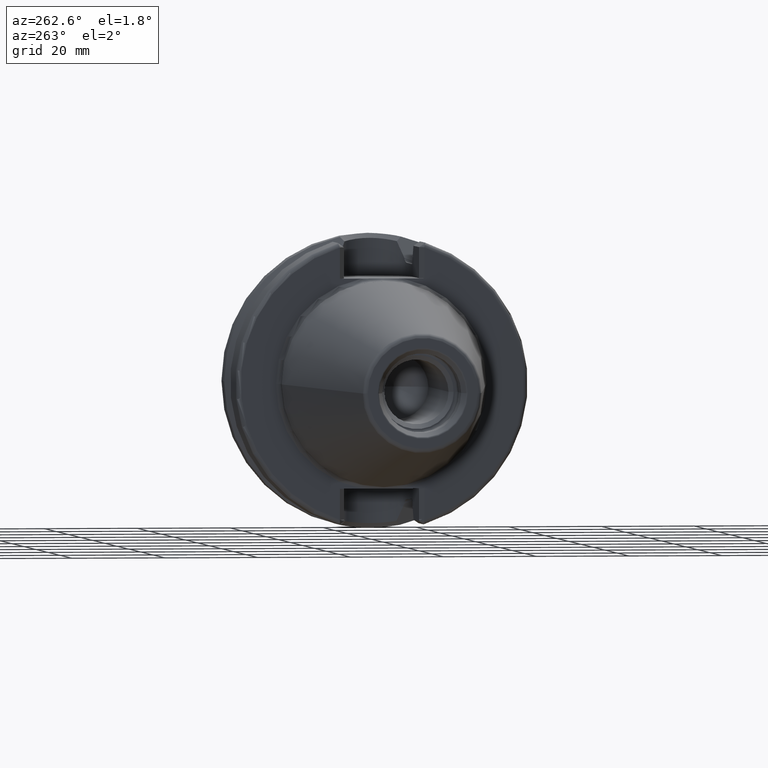
[diagram: clean part render]
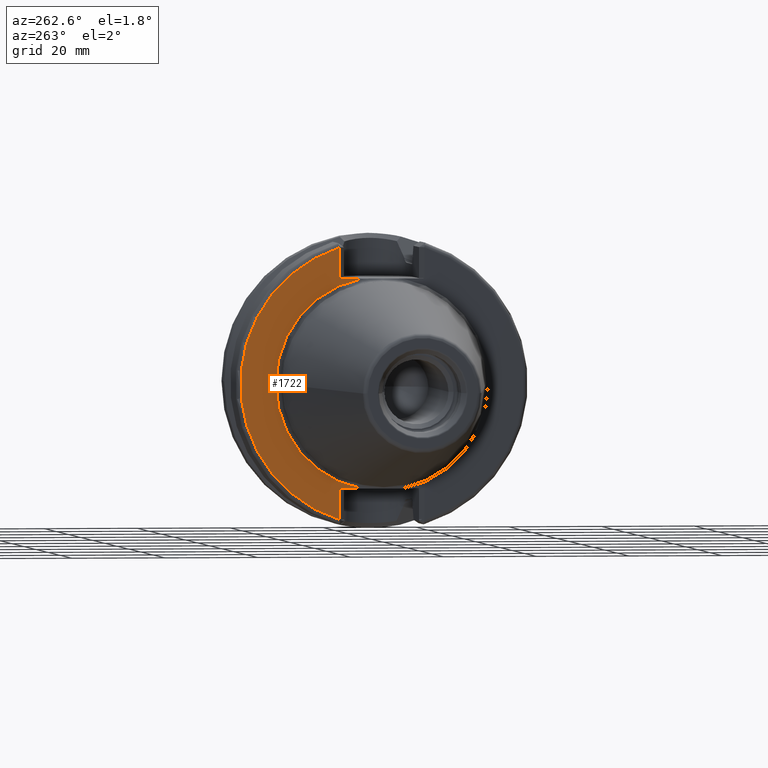
[diagram: same view with one face highlighted and labeled with its STEP entity id]
A machine part, auxiliary view. The second image highlights one B-rep face of the part: STEP entity #1722.
In plain terms, the highlighted planar face has unit normal (1, 0, 0).
Its self-contained STEP definition (entity closure, byte-faithful):
#96=CARTESIAN_POINT('',(2.E0,0.E0,0.E0));
#97=DIRECTION('',(-1.E0,0.E0,0.E0));
#98=DIRECTION('',(0.E0,1.E0,0.E0));
#99=AXIS2_PLACEMENT_3D('',#96,#97,#98);
#127=DIRECTION('',(2.137863157138E-6,2.138092596513E-6,9.999999999954E-1));
#128=VECTOR('',#127,6.649288203884E0);
#129=CARTESIAN_POINT('',(1.999985784732E0,9.094985783206E0,-2.909928820385E1));
#130=LINE('',#129,#128);
#131=DIRECTION('',(-4.462834027332E-6,-4.463945839096E-6,9.999999999801E-1));
#132=VECTOR('',#131,6.649296399125E0);
#133=CARTESIAN_POINT('',(2.E0,9.095E0,2.245E1));
#134=LINE('',#133,#132);
#592=CARTESIAN_POINT('',(2.E0,0.E0,0.E0));
#593=DIRECTION('',(-1.E0,0.E0,0.E0));
#594=DIRECTION('',(0.E0,2.983190614061E-1,9.544662055839E-1));
#595=AXIS2_PLACEMENT_3D('',#592,#593,#594);
#688=DIRECTION('',(0.E0,1.E0,0.E0));
#689=VECTOR('',#688,4.706022328605E0);
#690=CARTESIAN_POINT('',(2.E0,4.388977671395E0,2.245E1));
#691=LINE('',#690,#689);
#709=CARTESIAN_POINT('',(2.E0,0.E0,0.E0));
#710=DIRECTION('',(1.E0,0.E0,0.E0));
#711=DIRECTION('',(0.E0,1.E0,0.E0));
#712=AXIS2_PLACEMENT_3D('',#709,#710,#711);
#746=DIRECTION('',(0.E0,-1.E0,0.E0));
#747=VECTOR('',#746,4.706022328605E0);
#748=CARTESIAN_POINT('',(2.E0,9.095E0,-2.245E1));
#749=LINE('',#748,#747);
#1366=CARTESIAN_POINT('',(2.E0,2.2875E1,0.E0));
#1368=VERTEX_POINT('',#1366);
#1436=CARTESIAN_POINT('',(2.E0,4.388977671395E0,2.245E1));
#1437=VERTEX_POINT('',#1436);
#1444=CARTESIAN_POINT('',(2.E0,4.388977671395E0,-2.245E1));
#1445=VERTEX_POINT('',#1444);
#1482=CARTESIAN_POINT('',(2.E0,9.095027762300E0,2.909928051090E1));
#1484=VERTEX_POINT('',#1482);
#1486=CARTESIAN_POINT('',(2.E0,9.095E0,2.245E1));
#1487=VERTEX_POINT('',#1486);
#1496=CARTESIAN_POINT('',(1.999985784732E0,9.094985783206E0,-2.909928820385E1));
#1497=CARTESIAN_POINT('',(2.E0,9.095E0,-2.245E1));
#1498=VERTEX_POINT('',#1496);
#1499=VERTEX_POINT('',#1497);
#1702=CARTESIAN_POINT('',(2.E0,0.E0,0.E0));
#1703=DIRECTION('',(1.E0,0.E0,0.E0));
#1704=DIRECTION('',(0.E0,-1.E0,0.E0));
#1705=AXIS2_PLACEMENT_3D('',#1702,#1703,#1704);
#1706=PLANE('',#1705);
#1708=ORIENTED_EDGE('',*,*,#1707,.F.);
#1710=ORIENTED_EDGE('',*,*,#1709,.F.);
#1712=ORIENTED_EDGE('',*,*,#1711,.F.);
#1714=ORIENTED_EDGE('',*,*,#1713,.F.);
#1716=ORIENTED_EDGE('',*,*,#1715,.F.);
#1717=ORIENTED_EDGE('',*,*,#1688,.T.);
#1719=ORIENTED_EDGE('',*,*,#1718,.F.);
#1720=EDGE_LOOP('',(#1708,#1710,#1712,#1714,#1716,#1717,#1719));
#1721=FACE_OUTER_BOUND('',#1720,.F.);
#1722=ADVANCED_FACE('',(#1721),#1706,.F.);
#100=CIRCLE('',#99,2.2875E1);
#596=CIRCLE('',#595,3.04875E1);
#713=CIRCLE('',#712,2.2875E1);
#1688=EDGE_CURVE('',#1368,#1445,#100,.T.);
#1707=EDGE_CURVE('',#1498,#1499,#130,.T.);
#1709=EDGE_CURVE('',#1484,#1498,#596,.T.);
#1711=EDGE_CURVE('',#1487,#1484,#134,.T.);
#1713=EDGE_CURVE('',#1437,#1487,#691,.T.);
#1715=EDGE_CURVE('',#1368,#1437,#713,.T.);
#1718=EDGE_CURVE('',#1499,#1445,#749,.T.);